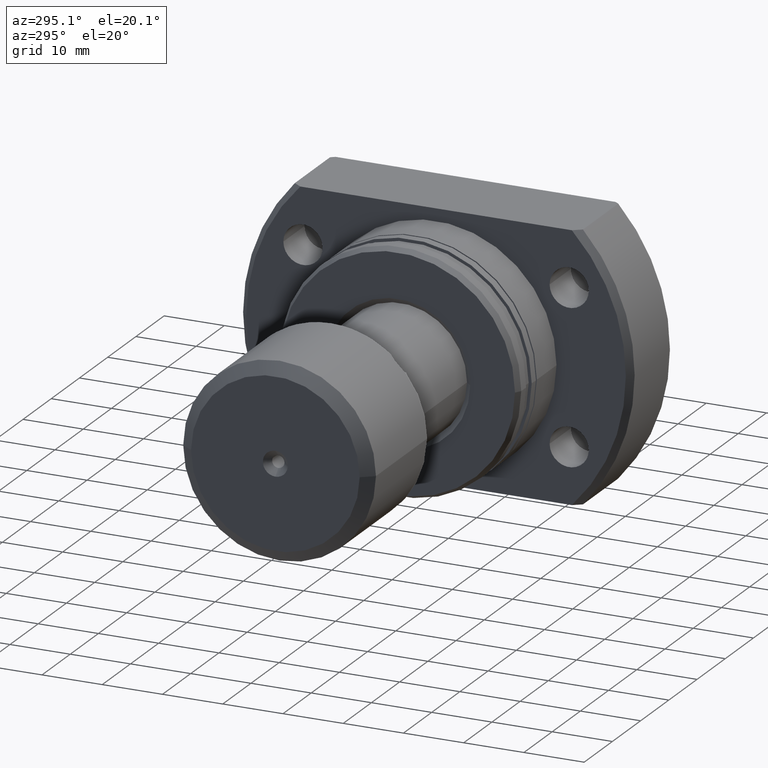
[diagram: clean part render]
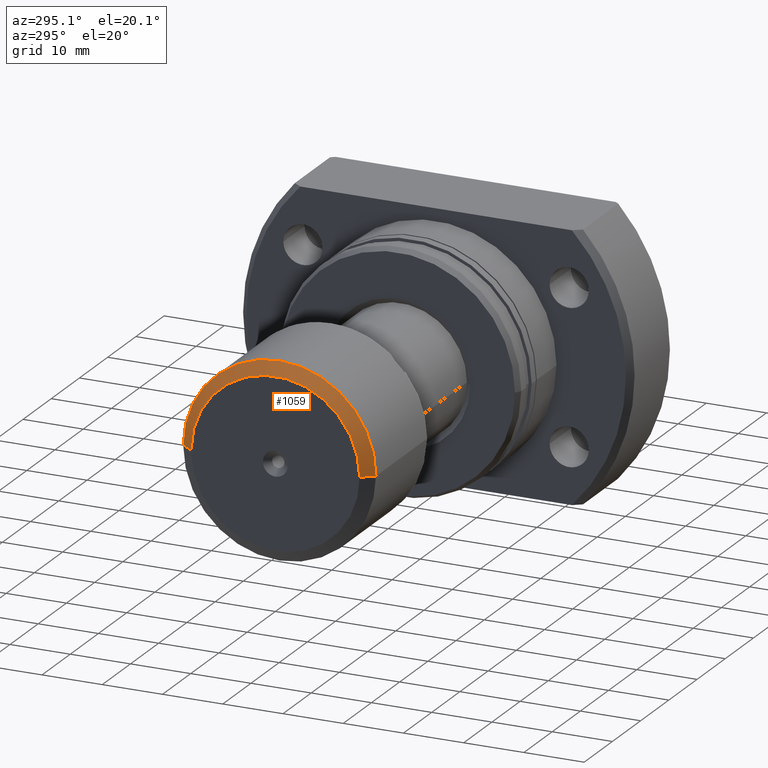
[diagram: same view with one face highlighted and labeled with its STEP entity id]
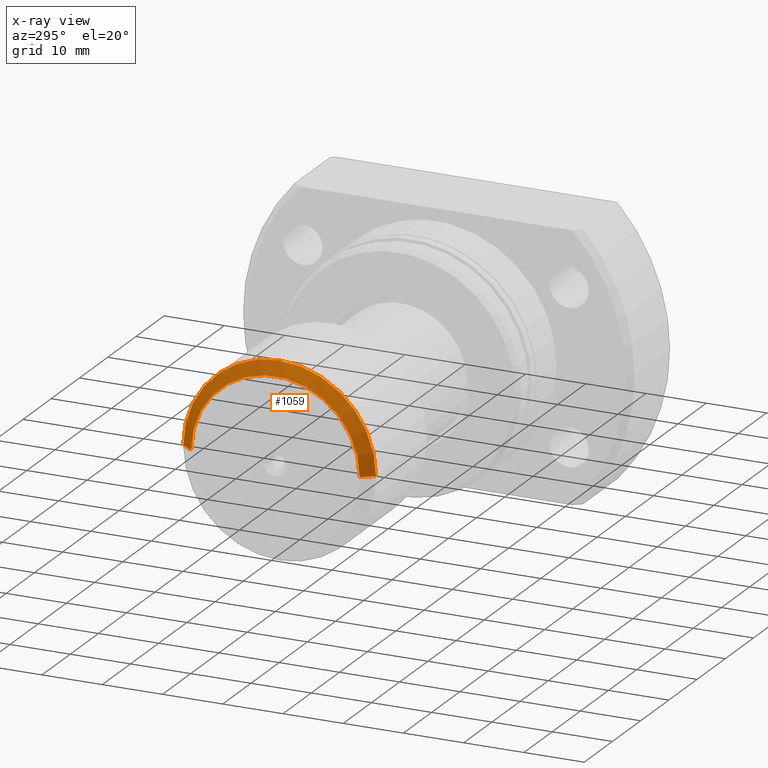
[diagram: x-ray of the same camera — body ghosted, the highlighted face saturated]
A machine part, auxiliary view. The second image highlights one B-rep face of the part: STEP entity #1059.
The next image is the same camera in x-ray: the body ghosted, the highlighted face saturated — about 0% of this face is hidden behind the body in this view.
In plain terms, the highlighted conical surface has half-angle 53.13 deg.
Its self-contained STEP definition (entity closure, byte-faithful):
#83 = EDGE_CURVE ( 'NONE', #3193, #1093, #3159, .T. ) ;
#109 = VECTOR ( 'NONE', #2621, 999.9999999999998863 ) ;
#110 = ORIENTED_EDGE ( 'NONE', *, *, #83, .T. ) ;
#116 = CONICAL_SURFACE ( 'NONE', #475, 14.00000000000000000, 0.9272952180016120760 ) ;
#203 = DIRECTION ( 'NONE',  ( 0.6000000000000001998, 0.7999999999999999334, 0.000000000000000000 ) ) ;
#294 = LINE ( 'NONE', #1552, #2877 ) ;
#475 = AXIS2_PLACEMENT_3D ( 'NONE', #2524, #2791, #1703 ) ;
#561 = CIRCLE ( 'NONE', #2384, 16.00000000000000000 ) ;
#700 = CARTESIAN_POINT ( 'NONE',  ( 1.564769593716625324E-15, 1.673587304766748118E-32, 0.000000000000000000 ) ) ;
#761 = CARTESIAN_POINT ( 'NONE',  ( 1.500000000000001998, 1.604313483103600935E-17, 0.000000000000000000 ) ) ;
#816 = AXIS2_PLACEMENT_3D ( 'NONE', #700, #2443, #2182 ) ;
#904 = VERTEX_POINT ( 'NONE', #2600 ) ;
#992 = EDGE_CURVE ( 'NONE', #904, #1210, #294, .T. ) ;
#1035 = FACE_OUTER_BOUND ( 'NONE', #2484, .T. ) ;
#1059 = ADVANCED_FACE ( 'NONE', ( #1035 ), #116, .T. ) ;
#1093 = VERTEX_POINT ( 'NONE', #2452 ) ;
#1210 = VERTEX_POINT ( 'NONE', #1827 ) ;
#1505 = EDGE_CURVE ( 'NONE', #1093, #1210, #561, .T. ) ;
#1552 = CARTESIAN_POINT ( 'NONE',  ( 1.415033668626956010E-15, 14.00000000000000000, 0.000000000000000000 ) ) ;
#1634 = CARTESIAN_POINT ( 'NONE',  ( 1.714505518806294638E-15, -14.00000000000000000, 1.714505518806294638E-15 ) ) ;
#1703 = DIRECTION ( 'NONE',  ( -1.069542322069066109E-17, 1.000000000000000000, 0.000000000000000000 ) ) ;
#1827 = CARTESIAN_POINT ( 'NONE',  ( 1.500000000000001776, 16.00000000000000000, 0.000000000000000000 ) ) ;
#1829 = EDGE_CURVE ( 'NONE', #3193, #904, #2223, .T. ) ;
#1990 = DIRECTION ( 'NONE',  ( 1.355252715606880543E-17, -1.000000000000000000, 0.000000000000000000 ) ) ;
#2182 = DIRECTION ( 'NONE',  ( 1.069542322069066109E-17, -1.000000000000000000, 0.000000000000000000 ) ) ;
#2188 = ORIENTED_EDGE ( 'NONE', *, *, #1505, .T. ) ;
#2223 = CIRCLE ( 'NONE', #816, 14.00000000000000000 ) ;
#2384 = AXIS2_PLACEMENT_3D ( 'NONE', #761, #2519, #1990 ) ;
#2411 = CARTESIAN_POINT ( 'NONE',  ( 1.714505518806294638E-15, -14.00000000000000000, 1.836970198721029589E-15 ) ) ;
#2443 = DIRECTION ( 'NONE',  ( -1.000000000000000000, -1.069542322069065801E-17, -0.000000000000000000 ) ) ;
#2452 = CARTESIAN_POINT ( 'NONE',  ( 1.500000000000002220, -16.00000000000000000, 1.959434878635765526E-15 ) ) ;
#2474 = ORIENTED_EDGE ( 'NONE', *, *, #992, .F. ) ;
#2484 = EDGE_LOOP ( 'NONE', ( #2612, #110, #2188, #2474 ) ) ;
#2519 = DIRECTION ( 'NONE',  ( -1.000000000000000000, -1.069542322069065801E-17, -0.000000000000000000 ) ) ;
#2524 = CARTESIAN_POINT ( 'NONE',  ( 1.564769593716625324E-15, 1.673587304766748118E-32, 0.000000000000000000 ) ) ;
#2600 = CARTESIAN_POINT ( 'NONE',  ( 1.415033668626956010E-15, 14.00000000000000000, 0.000000000000000000 ) ) ;
#2612 = ORIENTED_EDGE ( 'NONE', *, *, #1829, .F. ) ;
#2621 = DIRECTION ( 'NONE',  ( 0.6000000000000001998, -0.7999999999999999334, 9.797174393178826150E-17 ) ) ;
#2791 = DIRECTION ( 'NONE',  ( 1.000000000000000000, 1.069542322069065801E-17, 0.000000000000000000 ) ) ;
#2877 = VECTOR ( 'NONE', #203, 999.9999999999998863 ) ;
#3159 = LINE ( 'NONE', #1634, #109 ) ;
#3193 = VERTEX_POINT ( 'NONE', #2411 ) ;